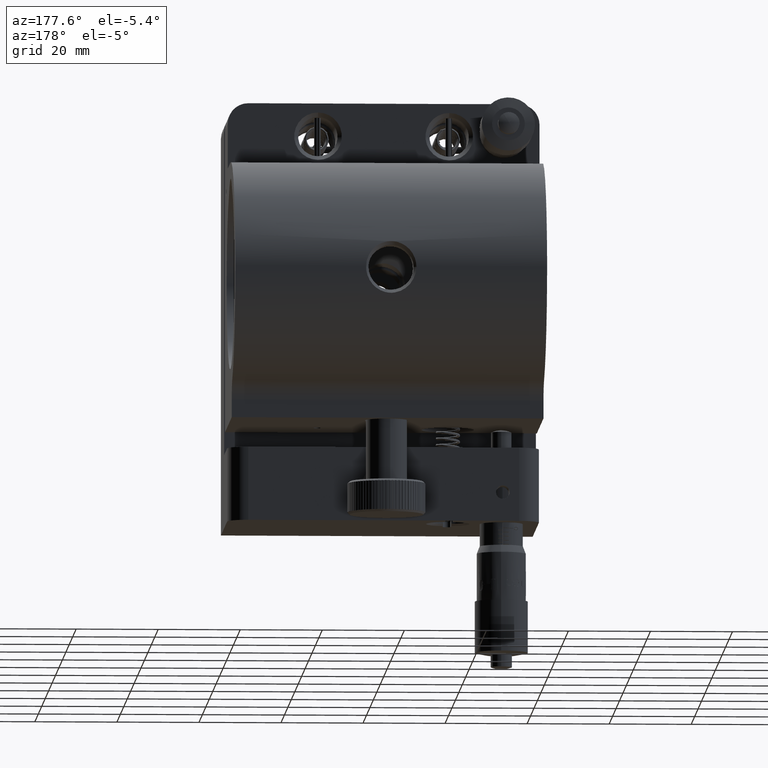
[diagram: clean part render]
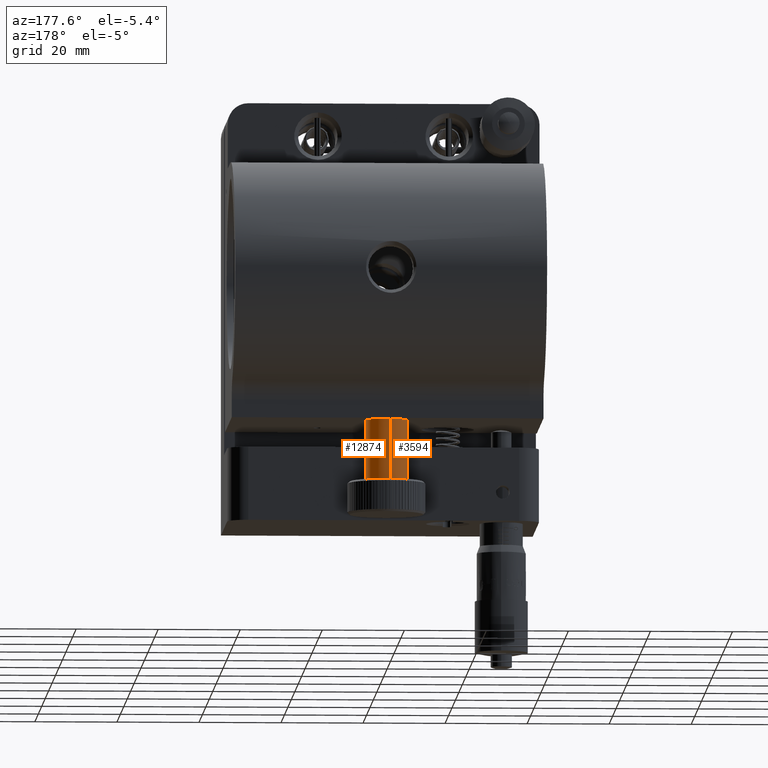
[diagram: same view with one multi-face feature highlighted, each face labeled with its STEP entity id]
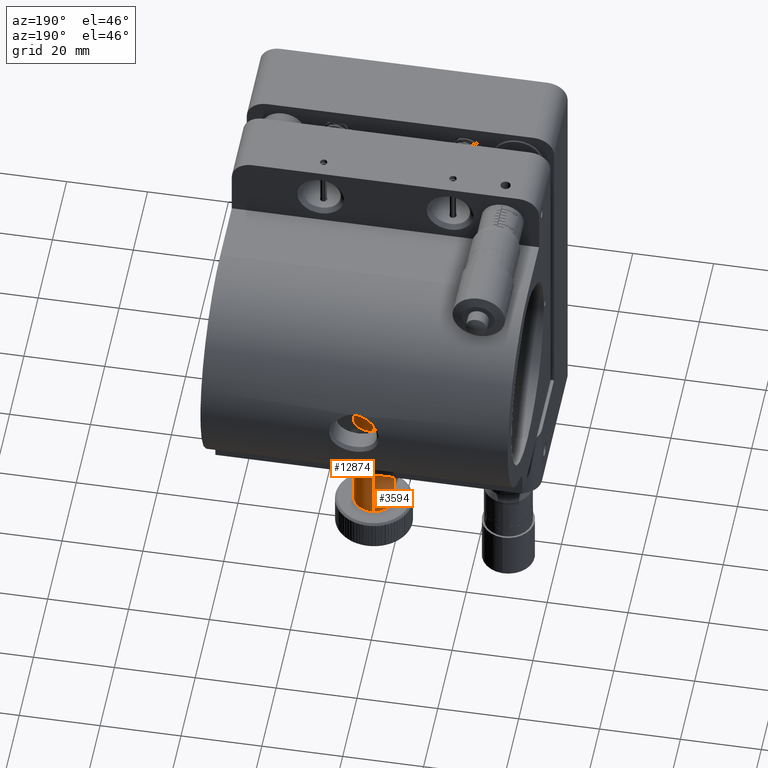
[diagram: same view with one multi-face feature highlighted, each face labeled with its STEP entity id]
A machine part, auxiliary view. The highlighted faces form ONE feature: a constant-radius fillet chain: 2 tangent blend faces with common blend radius 5 mm. The faces share edges in the B-rep.
A second angle (auxiliary view) of the same feature is appended — it is thin or edge-on in the first view.
Their STEP definitions:
[1] entity #12874 (Cylinder):
#6152 = CARTESIAN_POINT ( 'NONE',  ( -0.7230269390423507100, 60.94744702300270200, -5.500000000000361500 ) ) ;
#8106 = DIRECTION ( 'NONE',  ( -0.1446053878084718500, 0.9894894046005553400, -5.551115123125778800E-015 ) ) ;
#11586 = DIRECTION ( 'NONE',  ( 4.593299548228740000E-017, 5.625802388257970700E-015, 1.000000000000000000 ) ) ;
#12874 = ADVANCED_FACE ( 'NONE', ( #89442 ), #19605, .T. ) ;
#15001 = CARTESIAN_POINT ( 'NONE',  ( 0.7230269390423675900, 51.05255297699714800, -5.500000000000305500 ) ) ;
#16327 = CARTESIAN_POINT ( 'NONE',  ( 2.617900619371920100E-015, 55.99999999999983700, -50.00000000000028400 ) ) ;
#16395 = ORIENTED_EDGE ( 'NONE', *, *, #24310, .T. ) ;
#17112 = EDGE_CURVE ( 'NONE', #73351, #64477, #84739, .T. ) ;
#18304 = DIRECTION ( 'NONE',  ( 0.1446053878084718500, -0.9894894046005553400, 5.551115123125778800E-015 ) ) ;
#19224 = AXIS2_PLACEMENT_3D ( 'NONE', #39643, #11586, #18304 ) ;
#19605 = CYLINDRICAL_SURFACE ( 'NONE', #19224, 5.000000000000003600 ) ;
#20571 = VECTOR ( 'NONE', #43871, 1000.000000000000000 ) ;
#21400 = VERTEX_POINT ( 'NONE', #15001 ) ;
#23677 = CARTESIAN_POINT ( 'NONE',  ( 0.7230269390423623700, 51.05255297699705600, -50.00000000000026300 ) ) ;
#24310 = EDGE_CURVE ( 'NONE', #73351, #34690, #32410, .T. ) ;
#27073 = CARTESIAN_POINT ( 'NONE',  ( -0.7230269390423567100, 60.94744702300261700, -50.00000000000031300 ) ) ;
#32410 = LINE ( 'NONE', #27073, #48767 ) ;
#34102 = ORIENTED_EDGE ( 'NONE', *, *, #17112, .F. ) ;
#34690 = VERTEX_POINT ( 'NONE', #6152 ) ;
#38505 = ORIENTED_EDGE ( 'NONE', *, *, #70214, .T. ) ;
#39643 = CARTESIAN_POINT ( 'NONE',  ( 2.617900619371920100E-015, 55.99999999999983700, -50.00000000000028400 ) ) ;
#41423 = DIRECTION ( 'NONE',  ( 4.593299548228740000E-017, 5.625802388257970700E-015, 1.000000000000000000 ) ) ;
#41660 = CARTESIAN_POINT ( 'NONE',  ( 0.7230269390423808000, 51.05255297699706300, -50.00000000000026300 ) ) ;
#43871 = DIRECTION ( 'NONE',  ( 4.593299548228740000E-017, 5.625802388257970700E-015, 1.000000000000000000 ) ) ;
#44878 = DIRECTION ( 'NONE',  ( -0.1446053878084718500, 0.9894894046005553400, -5.551115123125778800E-015 ) ) ;
#48767 = VECTOR ( 'NONE', #41423, 1000.000000000000000 ) ;
#51243 = AXIS2_PLACEMENT_3D ( 'NONE', #79640, #86644, #44878 ) ;
#64477 = VERTEX_POINT ( 'NONE', #41660 ) ;
#65155 = DIRECTION ( 'NONE',  ( -4.593299548228895300E-017, -5.625802388257969900E-015, -1.000000000000000000 ) ) ;
#70214 = EDGE_CURVE ( 'NONE', #34690, #21400, #76800, .T. ) ;
#71943 = LINE ( 'NONE', #23677, #20571 ) ;
#73351 = VERTEX_POINT ( 'NONE', #83441 ) ;
#76800 = CIRCLE ( 'NONE', #51243, 5.000000000000003600 ) ;
#78341 = EDGE_CURVE ( 'NONE', #64477, #21400, #71943, .T. ) ;
#79640 = CARTESIAN_POINT ( 'NONE',  ( 3.360271268249698500E-014, 55.99999999999992900, -5.500000000000334000 ) ) ;
#80260 = EDGE_LOOP ( 'NONE', ( #34102, #16395, #38505, #90523 ) ) ;
#83441 = CARTESIAN_POINT ( 'NONE',  ( -0.7230269390423373900, 60.94744702300261700, -50.00000000000031300 ) ) ;
#84739 = CIRCLE ( 'NONE', #90025, 5.000000000000003600 ) ;
#86644 = DIRECTION ( 'NONE',  ( -4.593299548228895300E-017, -5.625802388257969900E-015, -1.000000000000000000 ) ) ;
#89442 = FACE_OUTER_BOUND ( 'NONE', #80260, .T. ) ;
#90025 = AXIS2_PLACEMENT_3D ( 'NONE', #16327, #65155, #8106 ) ;
#90523 = ORIENTED_EDGE ( 'NONE', *, *, #78341, .F. ) ;
[2] entity #3594 (Cylinder):
#3594 = ADVANCED_FACE ( 'NONE', ( #27806 ), #79145, .T. ) ;
#5383 = ORIENTED_EDGE ( 'NONE', *, *, #85528, .T. ) ;
#6152 = CARTESIAN_POINT ( 'NONE',  ( -0.7230269390423507100, 60.94744702300270200, -5.500000000000361500 ) ) ;
#7737 = DIRECTION ( 'NONE',  ( -4.593299548228895300E-017, -5.625802388257969900E-015, -1.000000000000000000 ) ) ;
#14178 = ORIENTED_EDGE ( 'NONE', *, *, #24310, .F. ) ;
#15001 = CARTESIAN_POINT ( 'NONE',  ( 0.7230269390423675900, 51.05255297699714800, -5.500000000000305500 ) ) ;
#20571 = VECTOR ( 'NONE', #43871, 1000.000000000000000 ) ;
#21400 = VERTEX_POINT ( 'NONE', #15001 ) ;
#23677 = CARTESIAN_POINT ( 'NONE',  ( 0.7230269390423623700, 51.05255297699705600, -50.00000000000026300 ) ) ;
#24310 = EDGE_CURVE ( 'NONE', #73351, #34690, #32410, .T. ) ;
#27073 = CARTESIAN_POINT ( 'NONE',  ( -0.7230269390423567100, 60.94744702300261700, -50.00000000000031300 ) ) ;
#27574 = DIRECTION ( 'NONE',  ( -0.1446053878084718500, 0.9894894046005553400, -5.551115123125778800E-015 ) ) ;
#27806 = FACE_OUTER_BOUND ( 'NONE', #76500, .T. ) ;
#28698 = DIRECTION ( 'NONE',  ( 0.1446053878084718500, -0.9894894046005553400, 5.551115123125778800E-015 ) ) ;
#32410 = LINE ( 'NONE', #27073, #48767 ) ;
#34690 = VERTEX_POINT ( 'NONE', #6152 ) ;
#35380 = CARTESIAN_POINT ( 'NONE',  ( 2.617900619371920100E-015, 55.99999999999983700, -50.00000000000028400 ) ) ;
#35743 = CARTESIAN_POINT ( 'NONE',  ( 2.617900619371920100E-015, 55.99999999999983700, -50.00000000000028400 ) ) ;
#41015 = EDGE_CURVE ( 'NONE', #64477, #73351, #49551, .T. ) ;
#41131 = AXIS2_PLACEMENT_3D ( 'NONE', #35380, #55868, #28698 ) ;
#41423 = DIRECTION ( 'NONE',  ( 4.593299548228740000E-017, 5.625802388257970700E-015, 1.000000000000000000 ) ) ;
#41660 = CARTESIAN_POINT ( 'NONE',  ( 0.7230269390423808000, 51.05255297699706300, -50.00000000000026300 ) ) ;
#43871 = DIRECTION ( 'NONE',  ( 4.593299548228740000E-017, 5.625802388257970700E-015, 1.000000000000000000 ) ) ;
#48767 = VECTOR ( 'NONE', #41423, 1000.000000000000000 ) ;
#49551 = CIRCLE ( 'NONE', #58007, 5.000000000000003600 ) ;
#52152 = AXIS2_PLACEMENT_3D ( 'NONE', #67806, #88804, #54606 ) ;
#54606 = DIRECTION ( 'NONE',  ( -0.1446053878084718500, 0.9894894046005553400, -5.551115123125778800E-015 ) ) ;
#55868 = DIRECTION ( 'NONE',  ( 4.593299548228740000E-017, 5.625802388257970700E-015, 1.000000000000000000 ) ) ;
#57959 = ORIENTED_EDGE ( 'NONE', *, *, #41015, .F. ) ;
#58007 = AXIS2_PLACEMENT_3D ( 'NONE', #35743, #7737, #27574 ) ;
#63346 = ORIENTED_EDGE ( 'NONE', *, *, #78341, .T. ) ;
#64477 = VERTEX_POINT ( 'NONE', #41660 ) ;
#67806 = CARTESIAN_POINT ( 'NONE',  ( 3.360271268249698500E-014, 55.99999999999992900, -5.500000000000334000 ) ) ;
#71943 = LINE ( 'NONE', #23677, #20571 ) ;
#73351 = VERTEX_POINT ( 'NONE', #83441 ) ;
#76500 = EDGE_LOOP ( 'NONE', ( #14178, #57959, #63346, #5383 ) ) ;
#78341 = EDGE_CURVE ( 'NONE', #64477, #21400, #71943, .T. ) ;
#79145 = CYLINDRICAL_SURFACE ( 'NONE', #41131, 5.000000000000003600 ) ;
#82294 = CIRCLE ( 'NONE', #52152, 5.000000000000003600 ) ;
#83441 = CARTESIAN_POINT ( 'NONE',  ( -0.7230269390423373900, 60.94744702300261700, -50.00000000000031300 ) ) ;
#85528 = EDGE_CURVE ( 'NONE', #21400, #34690, #82294, .T. ) ;
#88804 = DIRECTION ( 'NONE',  ( -4.593299548228895300E-017, -5.625802388257969900E-015, -1.000000000000000000 ) ) ;